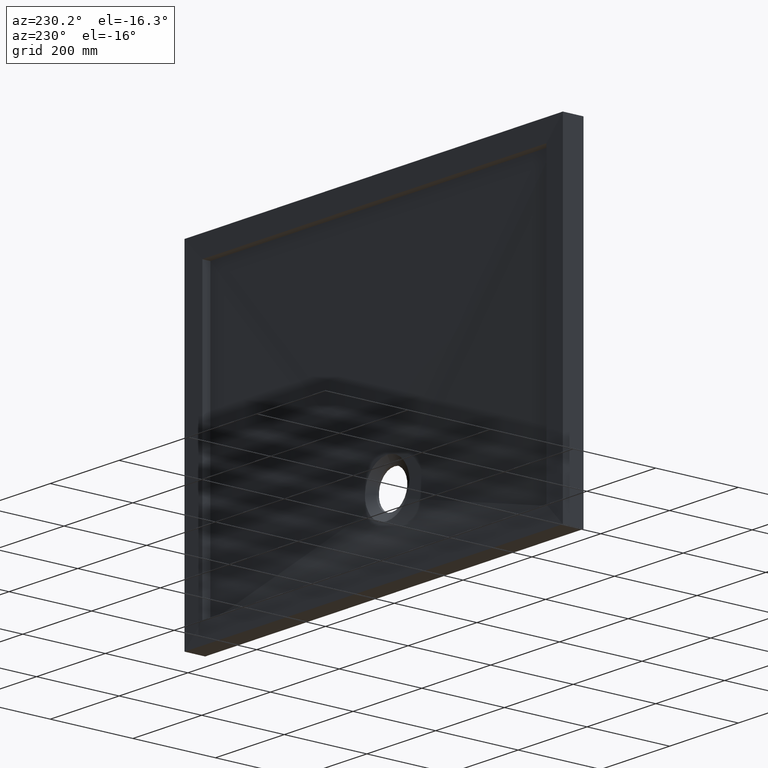
[diagram: clean part render]
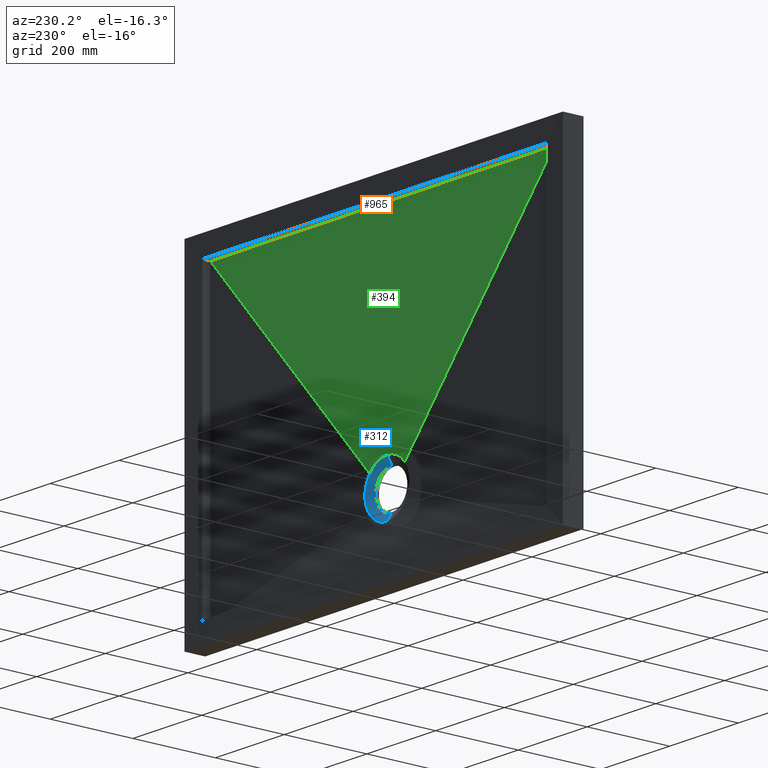
[diagram: same view with three faces highlighted in distinct colors, each labeled with its STEP entity id]
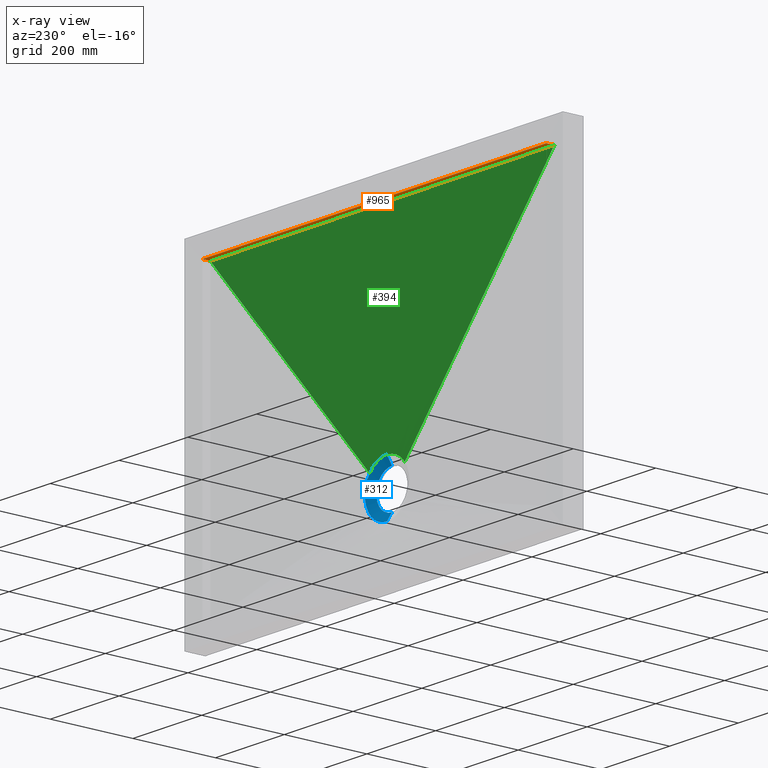
[diagram: x-ray of the same camera — body ghosted, the three highlighted faces saturated]
A machine part, auxiliary view with three faces highlighted in distinct colors.
The next image is the same camera in x-ray (body ghosted, the three faces saturated) — at least one of them is partly hidden behind the body in this view.
Their STEP definitions:

[orange] entity #965 — the highlighted planar face has unit normal (-0, 0, 1).
#38 = CARTESIAN_POINT ( 'NONE',  ( -500.0000000000000000, 28.99999999999991500, 350.0000000000001100 ) ) ;
#52 = LINE ( 'NONE', #815, #925 ) ;
#61 = VECTOR ( 'NONE', #117, 1000.000000000000000 ) ;
#78 = EDGE_CURVE ( 'NONE', #338, #118, #109, .T. ) ;
#109 = B_SPLINE_CURVE_WITH_KNOTS ( 'NONE', 3,
 ( #269, #244, #266, #271 ),
 .UNSPECIFIED., .F., .F.,
 ( 4, 4 ),
 ( 0.0000000000000000000, 1.000000000000000000 ),
 .UNSPECIFIED. ) ;
#117 = DIRECTION ( 'NONE',  ( -0.0000000000000000000, 1.000000000000000000, -0.0000000000000000000 ) ) ;
#118 = VERTEX_POINT ( 'NONE', #38 ) ;
#167 = DIRECTION ( 'NONE',  ( 1.000000000000000000, 0.0000000000000000000, 0.0000000000000000000 ) ) ;
#171 = ORIENTED_EDGE ( 'NONE', *, *, #78, .T. ) ;
#176 = CARTESIAN_POINT ( 'NONE',  ( 500.0000000000000000, 48.25745360236166400, 350.0000000000001100 ) ) ;
#195 = CARTESIAN_POINT ( 'NONE',  ( 500.0000000000002300, 29.00000000000000000, 350.0000000000001100 ) ) ;
#244 = CARTESIAN_POINT ( 'NONE',  ( 166.6666666666668600, 28.99999999999991500, 350.0000000000001100 ) ) ;
#254 = VERTEX_POINT ( 'NONE', #1019 ) ;
#266 = CARTESIAN_POINT ( 'NONE',  ( -166.6666666666666300, 28.99999999999991500, 350.0000000000001100 ) ) ;
#269 = CARTESIAN_POINT ( 'NONE',  ( 500.0000000000002300, 29.00000000000000000, 350.0000000000001100 ) ) ;
#271 = CARTESIAN_POINT ( 'NONE',  ( -500.0000000000000000, 28.99999999999991500, 350.0000000000001100 ) ) ;
#285 = EDGE_CURVE ( 'NONE', #254, #526, #719, .T. ) ;
#287 = PLANE ( 'NONE',  #935 ) ;
#294 = EDGE_LOOP ( 'NONE', ( #1033, #697, #407, #171 ) ) ;
#338 = VERTEX_POINT ( 'NONE', #195 ) ;
#342 = EDGE_CURVE ( 'NONE', #118, #254, #381, .T. ) ;
#381 = LINE ( 'NONE', #1022, #61 ) ;
#407 = ORIENTED_EDGE ( 'NONE', *, *, #620, .F. ) ;
#526 = VERTEX_POINT ( 'NONE', #176 ) ;
#620 = EDGE_CURVE ( 'NONE', #338, #526, #52, .T. ) ;
#644 = DIRECTION ( 'NONE',  ( 1.000000000000000000, 0.0000000000000000000, 0.0000000000000000000 ) ) ;
#697 = ORIENTED_EDGE ( 'NONE', *, *, #285, .T. ) ;
#719 = LINE ( 'NONE', #855, #824 ) ;
#813 = DIRECTION ( 'NONE',  ( -0.0000000000000000000, 1.000000000000000000, -0.0000000000000000000 ) ) ;
#815 = CARTESIAN_POINT ( 'NONE',  ( 500.0000000000000000, -1220.655561573370100, 350.0000000000001100 ) ) ;
#824 = VECTOR ( 'NONE', #644, 1000.000000000000000 ) ;
#855 = CARTESIAN_POINT ( 'NONE',  ( 500.0000000000000000, 48.25745360236189200, 350.0000000000001100 ) ) ;
#925 = VECTOR ( 'NONE', #813, 1000.000000000000000 ) ;
#935 = AXIS2_PLACEMENT_3D ( 'NONE', #970, #986, #167 ) ;
#965 = ADVANCED_FACE ( 'NONE', ( #1005 ), #287, .F. ) ;
#970 = CARTESIAN_POINT ( 'NONE',  ( -500.0000000000000000, -1220.655561573370100, 350.0000000000001100 ) ) ;
#986 = DIRECTION ( 'NONE',  ( -0.0000000000000000000, 0.0000000000000000000, 1.000000000000000000 ) ) ;
#1005 = FACE_OUTER_BOUND ( 'NONE', #294, .T. ) ;
#1019 = CARTESIAN_POINT ( 'NONE',  ( -500.0000000000000000, 48.25745360236166400, 350.0000000000001100 ) ) ;
#1022 = CARTESIAN_POINT ( 'NONE',  ( -500.0000000000000000, -1220.655561573370100, 350.0000000000001100 ) ) ;
#1033 = ORIENTED_EDGE ( 'NONE', *, *, #342, .T. ) ;

[blue] entity #312 — the highlighted conical surface has half-angle 60 deg.
#4 = CARTESIAN_POINT ( 'NONE',  ( 0.0000000000000000000, 6.000000000000000000, -154.9999999999999700 ) ) ;
#27 = AXIS2_PLACEMENT_3D ( 'NONE', #862, #331, #385 ) ;
#40 = LINE ( 'NONE', #941, #913 ) ;
#42 = B_SPLINE_CURVE_WITH_KNOTS ( 'NONE', 3,
 ( #641, #525, #745, #519, #230, #107, #517, #796, #691, #646, #748, #740, #128, #108, #355, #146, #454, #364, #449, #352, #353, #692, #350, #734, #844, #345 ),
 .UNSPECIFIED., .F., .F.,
 ( 4, 2, 2, 2, 2, 2, 2, 2, 2, 2, 2, 2, 4 ),
 ( 0.05846400129617364300, 0.06211118452030461200, 0.06393477613237010000, 0.06575836774443558100, 0.07305273419269750500, 0.08034710064095942900, 0.08399428386509040500, 0.08764146708922138100, 0.09493583353748327700, 0.1022301999857451700, 0.1058773832098761400, 0.1095245664340070700, 0.1168189328822689200 ),
 .UNSPECIFIED. ) ;
#54 = CARTESIAN_POINT ( 'NONE',  ( 64.70723121507114700, 17.37004424533472900, -199.0755451539492600 ) ) ;
#56 = ORIENTED_EDGE ( 'NONE', *, *, #475, .F. ) ;
#68 = CARTESIAN_POINT ( 'NONE',  ( 57.34800329334924400, 17.37164640752299100, -230.1223253466753200 ) ) ;
#107 = CARTESIAN_POINT ( 'NONE',  ( 6.112647968208114500, 17.32620649155840200, -135.6692632758794700 ) ) ;
#108 = CARTESIAN_POINT ( 'NONE',  ( 26.10561876225368700, 17.30353324498871400, -140.9207614138230700 ) ) ;
#111 = AXIS2_PLACEMENT_3D ( 'NONE', #366, #299, #624 ) ;
#115 = CARTESIAN_POINT ( 'NONE',  ( 62.15446047024993700, 17.38718789417705700, -218.1250498923894000 ) ) ;
#128 = CARTESIAN_POINT ( 'NONE',  ( 23.84655168161930000, 17.30745849126840200, -139.9660106085646600 ) ) ;
#144 = CARTESIAN_POINT ( 'NONE',  ( 61.49227516425985100, 17.31452496245966100, -180.1475144752760100 ) ) ;
#146 = CARTESIAN_POINT ( 'NONE',  ( 30.53858112719107600, 17.29497338047776000, -143.0624719587600900 ) ) ;
#154 = CARTESIAN_POINT ( 'NONE',  ( 62.83103500588946100, 17.33057721884764700, -184.7935048089493100 ) ) ;
#168 = DIRECTION ( 'NONE',  ( 1.060575238724906900E-016, 0.4999999999999998900, -0.8660254037844387100 ) ) ;
#172 = CARTESIAN_POINT ( 'NONE',  ( 7.960204194457797300E-015, 17.54700538379253100, -264.9999999999999400 ) ) ;
#197 = FACE_OUTER_BOUND ( 'NONE', #558, .T. ) ;
#198 = VERTEX_POINT ( 'NONE', #865 ) ;
#207 = CARTESIAN_POINT ( 'NONE',  ( 58.78832851517513100, 17.37762017058859200, -227.2279737487014900 ) ) ;
#210 = CARTESIAN_POINT ( 'NONE',  ( 61.17085511816162600, 17.38519753280123200, -221.1984582364054600 ) ) ;
#230 = CARTESIAN_POINT ( 'NONE',  ( 4.886845351621417400, 17.32669083958730000, -135.5637112086310200 ) ) ;
#236 = B_SPLINE_CURVE_WITH_KNOTS ( 'NONE', 3,
 ( #320, #334, #401, #365 ),
 .UNSPECIFIED., .F., .F.,
 ( 4, 4 ),
 ( 0.0000000000000000000, 0.01309867938330680100 ),
 .UNSPECIFIED. ) ;
#238 = ORIENTED_EDGE ( 'NONE', *, *, #636, .T. ) ;
#248 = EDGE_CURVE ( 'NONE', #306, #436, #713, .T. ) ;
#261 = EDGE_CURVE ( 'NONE', #820, #639, #509, .T. ) ;
#284 = CARTESIAN_POINT ( 'NONE',  ( 57.84415519286896800, 17.28100687613712700, -171.1969343167851000 ) ) ;
#299 = DIRECTION ( 'NONE',  ( -0.0000000000000000000, -1.000000000000000000, -0.0000000000000000000 ) ) ;
#306 = VERTEX_POINT ( 'NONE', #884 ) ;
#312 = ADVANCED_FACE ( 'NONE', ( #197 ), #561, .F. ) ;
#320 = CARTESIAN_POINT ( 'NONE',  ( 55.68490230141027600, 17.36412464260612900, -232.9106875675516300 ) ) ;
#331 = DIRECTION ( 'NONE',  ( -0.0000000000000000000, -1.000000000000000000, -0.0000000000000000000 ) ) ;
#334 = CARTESIAN_POINT ( 'NONE',  ( 53.52113663204334400, 17.40928906739684100, -236.7255291940533400 ) ) ;
#345 = CARTESIAN_POINT ( 'NONE',  ( 50.87906680573850300, 17.23826778312639600, -160.4135235172096500 ) ) ;
#348 = CARTESIAN_POINT ( 'NONE',  ( -2.854144852321429700E-015, 17.32753171431356500, -135.3801395464611200 ) ) ;
#350 = CARTESIAN_POINT ( 'NONE',  ( 45.18196119715054900, 17.25712745137958500, -153.9555850668388400 ) ) ;
#352 = CARTESIAN_POINT ( 'NONE',  ( 41.56052739689892700, 17.26778659840147200, -150.6383429323813300 ) ) ;
#353 = CARTESIAN_POINT ( 'NONE',  ( 42.48557603386071700, 17.26515069668197100, -151.4381248451775500 ) ) ;
#355 = CARTESIAN_POINT ( 'NONE',  ( 27.22931686243352400, 17.30145332206185000, -141.4340842872221600 ) ) ;
#363 = CARTESIAN_POINT ( 'NONE',  ( 60.61639150678645600, 17.38366405397212200, -222.7282884315766300 ) ) ;
#364 = CARTESIAN_POINT ( 'NONE',  ( 36.75756856903356600, 17.28064980409957800, -146.8959525620774700 ) ) ;
#365 = CARTESIAN_POINT ( 'NONE',  ( 48.17256978410776500, 17.54700538379253100, -243.6394720453314200 ) ) ;
#366 = CARTESIAN_POINT ( 'NONE',  ( 0.0000000000000000000, 17.54700538379253100, -199.9999999999999400 ) ) ;
#385 = DIRECTION ( 'NONE',  ( 0.0000000000000000000, 0.0000000000000000000, 1.000000000000000000 ) ) ;
#386 = B_SPLINE_CURVE_WITH_KNOTS ( 'NONE', 3,
 ( #851, #446, #725, #284, #735, #1000, #144, #712, #154, #953, #704, #549, #54, #524, #500, #487, #504, #518, #115, #210, #363, #207, #68, #555 ),
 .UNSPECIFIED., .F., .F.,
 ( 4, 2, 2, 2, 2, 2, 2, 2, 2, 2, 2, 4 ),
 ( 0.0000000000000000000, 0.009600561725997446700, 0.01920112345199489300, 0.02400140431499361200, 0.02880168517799233000, 0.03840224690398976600, 0.04320252776698849100, 0.04800280862998721600, 0.05760337035598465200, 0.06240365121898336400, 0.06720393208198208200, 0.07680449380797950400 ),
 .UNSPECIFIED. ) ;
#392 = ORIENTED_EDGE ( 'NONE', *, *, #261, .F. ) ;
#397 = ORIENTED_EDGE ( 'NONE', *, *, #752, .T. ) ;
#401 = CARTESIAN_POINT ( 'NONE',  ( 51.01113406412874700, 17.46625825582806300, -240.2977333082660300 ) ) ;
#419 = AXIS2_PLACEMENT_3D ( 'NONE', #763, #942, #523 ) ;
#436 = VERTEX_POINT ( 'NONE', #4 ) ;
#446 = CARTESIAN_POINT ( 'NONE',  ( 52.88642249345365800, 17.24847984203009700, -162.9647012004550100 ) ) ;
#449 = CARTESIAN_POINT ( 'NONE',  ( 38.72608130938711200, 17.27558937399402000, -148.3245925508164800 ) ) ;
#454 = CARTESIAN_POINT ( 'NONE',  ( 32.66381451161497300, 17.29034432866924600, -144.2648980001060300 ) ) ;
#475 = EDGE_CURVE ( 'NONE', #306, #820, #480, .T. ) ;
#480 = LINE ( 'NONE', #172, #715 ) ;
#487 = CARTESIAN_POINT ( 'NONE',  ( 64.20737254235946500, 17.38523952946565000, -208.7409925677566500 ) ) ;
#500 = CARTESIAN_POINT ( 'NONE',  ( 64.60900109915814900, 17.37885316510284600, -203.9349573249705500 ) ) ;
#504 = CARTESIAN_POINT ( 'NONE',  ( 63.70071009142886000, 17.38747108179409300, -211.9014242944717800 ) ) ;
#509 = CIRCLE ( 'NONE', #111, 65.00000000000000000 ) ;
#517 = CARTESIAN_POINT ( 'NONE',  ( 6.726946289106203700, 17.32592302632366800, -135.7310885635423300 ) ) ;
#518 = CARTESIAN_POINT ( 'NONE',  ( 62.58559460847099100, 17.38765272428474900, -216.5772760871601600 ) ) ;
#519 = CARTESIAN_POINT ( 'NONE',  ( 4.274556986073615200, 17.32689222999365000, -135.5198731262792900 ) ) ;
#522 = EDGE_CURVE ( 'NONE', #198, #639, #236, .T. ) ;
#523 = DIRECTION ( 'NONE',  ( 0.0000000000000000000, 0.0000000000000000000, 1.000000000000000000 ) ) ;
#524 = CARTESIAN_POINT ( 'NONE',  ( 64.68293862567385600, 17.37622754173809300, -202.3202716154729000 ) ) ;
#525 = CARTESIAN_POINT ( 'NONE',  ( 1.218564114226294000, 17.32753171431357200, -135.3801395464611500 ) ) ;
#537 = VERTEX_POINT ( 'NONE', #348 ) ;
#549 = CARTESIAN_POINT ( 'NONE',  ( 64.65758558713665100, 17.36651905247342900, -197.4631169697395000 ) ) ;
#555 = CARTESIAN_POINT ( 'NONE',  ( 55.68490230141027600, 17.36412464260612900, -232.9106875675516300 ) ) ;
#558 = EDGE_LOOP ( 'NONE', ( #56, #800, #238, #397, #563, #988, #392 ) ) ;
#561 = CONICAL_SURFACE ( 'NONE', #419, 65.00000000000000000, 1.047197551196597900 ) ;
#563 = ORIENTED_EDGE ( 'NONE', *, *, #990, .T. ) ;
#564 = DIRECTION ( 'NONE',  ( 0.0000000000000000000, 0.4999999999999998900, 0.8660254037844387100 ) ) ;
#624 = DIRECTION ( 'NONE',  ( 0.0000000000000000000, 0.0000000000000000000, -1.000000000000000000 ) ) ;
#636 = EDGE_CURVE ( 'NONE', #436, #537, #40, .T. ) ;
#639 = VERTEX_POINT ( 'NONE', #956 ) ;
#641 = CARTESIAN_POINT ( 'NONE',  ( -2.854144852321429700E-015, 17.32753171431356500, -135.3801395464611200 ) ) ;
#646 = CARTESIAN_POINT ( 'NONE',  ( 16.92973820653054100, 17.31751320057206200, -137.6077700786845500 ) ) ;
#649 = CARTESIAN_POINT ( 'NONE',  ( 50.87906680573850300, 17.23826778312639600, -160.4135235172096500 ) ) ;
#691 = CARTESIAN_POINT ( 'NONE',  ( 12.18967428493793300, 17.32241716555634900, -136.5026318664594700 ) ) ;
#692 = CARTESIAN_POINT ( 'NONE',  ( 44.29542275296363800, 17.25982422048993200, -153.0957873861547700 ) ) ;
#704 = CARTESIAN_POINT ( 'NONE',  ( 64.32898096860672900, 17.35486550640815700, -192.6547192823615500 ) ) ;
#712 = CARTESIAN_POINT ( 'NONE',  ( 62.42504728470596100, 17.32532794862839900, -183.2383678949565000 ) ) ;
#713 = CIRCLE ( 'NONE', #27, 44.99999999999998600 ) ;
#715 = VECTOR ( 'NONE', #168, 1000.000000000000000 ) ;
#725 = CARTESIAN_POINT ( 'NONE',  ( 54.67740831685502900, 17.25913182203468900, -165.6335233292881500 ) ) ;
#734 = CARTESIAN_POINT ( 'NONE',  ( 47.75899517000356600, 17.24903845873952000, -156.6027816795450700 ) ) ;
#735 = CARTESIAN_POINT ( 'NONE',  ( 59.21985824127451500, 17.29221549807070000, -174.0915547698435800 ) ) ;
#740 = CARTESIAN_POINT ( 'NONE',  ( 22.70761009528516200, 17.30931273414911700, -139.5227338486390900 ) ) ;
#745 = CARTESIAN_POINT ( 'NONE',  ( 2.439508692937750300, 17.32737407060086800, -135.4148515612211800 ) ) ;
#748 = CARTESIAN_POINT ( 'NONE',  ( 19.26303620635154000, 17.31452146444384300, -138.2934777241726700 ) ) ;
#752 = EDGE_CURVE ( 'NONE', #537, #874, #42, .T. ) ;
#763 = CARTESIAN_POINT ( 'NONE',  ( 0.0000000000000000000, 17.54700538379253100, -199.9999999999999400 ) ) ;
#796 = CARTESIAN_POINT ( 'NONE',  ( 9.782908640078812100, 17.32431506559970900, -136.0832002345919100 ) ) ;
#799 = CARTESIAN_POINT ( 'NONE',  ( 0.0000000000000000000, 17.54700538379253100, -264.9999999999999400 ) ) ;
#800 = ORIENTED_EDGE ( 'NONE', *, *, #248, .T. ) ;
#820 = VERTEX_POINT ( 'NONE', #799 ) ;
#844 = CARTESIAN_POINT ( 'NONE',  ( 49.37182701444461200, 17.24363790214202300, -158.4611758277739000 ) ) ;
#851 = CARTESIAN_POINT ( 'NONE',  ( 50.87906680573850300, 17.23826778312639600, -160.4135235172096500 ) ) ;
#862 = CARTESIAN_POINT ( 'NONE',  ( 0.0000000000000000000, 6.000000000000000000, -199.9999999999999400 ) ) ;
#865 = CARTESIAN_POINT ( 'NONE',  ( 55.68490230141027600, 17.36412464260612900, -232.9106875675516300 ) ) ;
#874 = VERTEX_POINT ( 'NONE', #649 ) ;
#884 = CARTESIAN_POINT ( 'NONE',  ( -5.204748896376248500E-015, 6.000000000000000000, -244.9999999999999400 ) ) ;
#913 = VECTOR ( 'NONE', #564, 1000.000000000000000 ) ;
#941 = CARTESIAN_POINT ( 'NONE',  ( 0.0000000000000000000, 17.54700538379253100, -134.9999999999999400 ) ) ;
#942 = DIRECTION ( 'NONE',  ( 0.0000000000000000000, 1.000000000000000000, 0.0000000000000000000 ) ) ;
#953 = CARTESIAN_POINT ( 'NONE',  ( 63.87136309039215100, 17.34568475496981000, -189.4874743866648100 ) ) ;
#956 = CARTESIAN_POINT ( 'NONE',  ( 48.17256978410776500, 17.54700538379253100, -243.6394720453314200 ) ) ;
#988 = ORIENTED_EDGE ( 'NONE', *, *, #522, .T. ) ;
#990 = EDGE_CURVE ( 'NONE', #874, #198, #386, .T. ) ;
#1000 = CARTESIAN_POINT ( 'NONE',  ( 60.96337010501173400, 17.30894978269055400, -178.6075016322709200 ) ) ;

[green] entity #394 — the highlighted face is a freeform B-spline surface patch.
#1 = VECTOR ( 'NONE', #375, 1000.000000000000100 ) ;
#2 = CARTESIAN_POINT ( 'NONE',  ( 17.20878591624602500, 17.00000000000000400, -151.9437713889022600 ) ) ;
#5 = CARTESIAN_POINT ( 'NONE',  ( 145.8333333333345600, 29.00000000000000400, 350.0000000000001100 ) ) ;
#6 = CARTESIAN_POINT ( 'NONE',  ( 15.15893887578451800, 17.00000000000000000, -151.2563727105007600 ) ) ;
#7 = CARTESIAN_POINT ( 'NONE',  ( 10.95210479429227800, 16.99999999999999600, -150.1423423158264800 ) ) ;
#15 = CARTESIAN_POINT ( 'NONE',  ( 104.1666666666679800, 29.00000000000000400, 350.0000000000001100 ) ) ;
#16 = CARTESIAN_POINT ( 'NONE',  ( 83.33333333333467900, 29.00000000000000400, 350.0000000000001100 ) ) ;
#17 = CARTESIAN_POINT ( 'NONE',  ( 21.15875785157163600, 17.00000000000000000, -153.5473317535813700 ) ) ;
#23 = CARTESIAN_POINT ( 'NONE',  ( 8.795224814242915900, 17.00000000000000700, -149.7158153506212600 ) ) ;
#28 = CARTESIAN_POINT ( 'NONE',  ( -41.66666666666527200, 29.00000000000000000, 350.0000000000001100 ) ) ;
#31 = CARTESIAN_POINT ( 'NONE',  ( -4.425493543372240900, 17.00000000000000400, -149.1446147169892500 ) ) ;
#36 = CARTESIAN_POINT ( 'NONE',  ( -2.212786136686855100, 17.00000000000000400, -148.9999999999998300 ) ) ;
#38 = CARTESIAN_POINT ( 'NONE',  ( -500.0000000000000000, 28.99999999999991500, 350.0000000000001100 ) ) ;
#39 = CARTESIAN_POINT ( 'NONE',  ( -83.33333333333199300, 29.00000000000000000, 350.0000000000001100 ) ) ;
#41 = CARTESIAN_POINT ( 'NONE',  ( -8.795224814242958500, 17.00000000000001100, -149.7158153506212000 ) ) ;
#42 = B_SPLINE_CURVE_WITH_KNOTS ( 'NONE', 3,
 ( #641, #525, #745, #519, #230, #107, #517, #796, #691, #646, #748, #740, #128, #108, #355, #146, #454, #364, #449, #352, #353, #692, #350, #734, #844, #345 ),
 .UNSPECIFIED., .F., .F.,
 ( 4, 2, 2, 2, 2, 2, 2, 2, 2, 2, 2, 2, 4 ),
 ( 0.05846400129617364300, 0.06211118452030461200, 0.06393477613237010000, 0.06575836774443558100, 0.07305273419269750500, 0.08034710064095942900, 0.08399428386509040500, 0.08764146708922138100, 0.09493583353748327700, 0.1022301999857451700, 0.1058773832098761400, 0.1095245664340070700, 0.1168189328822689200 ),
 .UNSPECIFIED. ) ;
#57 = CARTESIAN_POINT ( 'NONE',  ( -10.95210479429232500, 16.99999999999999600, -150.1423423158264500 ) ) ;
#63 = CARTESIAN_POINT ( 'NONE',  ( -145.8333333333320100, 29.00000000000000000, 350.0000000000001100 ) ) ;
#66 = CARTESIAN_POINT ( 'NONE',  ( -15.15893887578456800, 17.00000000000000400, -151.2563727105007800 ) ) ;
#71 = CARTESIAN_POINT ( 'NONE',  ( -166.6666666666653500, 29.00000000000000000, 350.0000000000001100 ) ) ;
#76 = CARTESIAN_POINT ( 'NONE',  ( -17.20878591624606100, 17.00000000000000000, -151.9437713889022900 ) ) ;
#78 = EDGE_CURVE ( 'NONE', #338, #118, #109, .T. ) ;
#79 = CARTESIAN_POINT ( 'NONE',  ( -36.78128651579465500, 17.28048776699820300, -146.9543331638377300 ) ) ;
#81 = ORIENTED_EDGE ( 'NONE', *, *, #752, .F. ) ;
#82 = CARTESIAN_POINT ( 'NONE',  ( -208.3333333333320900, 29.00000000000000000, 350.0000000000001100 ) ) ;
#84 = CARTESIAN_POINT ( 'NONE',  ( -21.15875785157167500, 16.99999999999999600, -153.5473317535813500 ) ) ;
#86 = CARTESIAN_POINT ( 'NONE',  ( -229.1666666666654600, 29.00000000000000000, 350.0000000000001100 ) ) ;
#89 = CARTESIAN_POINT ( 'NONE',  ( -333.3333333333324600, 28.99999999999999600, 350.0000000000001100 ) ) ;
#90 = CARTESIAN_POINT ( 'NONE',  ( -31.63133132208605100, 17.00000000000000400, -159.9442574900167000 ) ) ;
#92 = CARTESIAN_POINT ( 'NONE',  ( -354.1666666666658300, 28.99999999999999600, 350.0000000000001100 ) ) ;
#93 = CARTESIAN_POINT ( 'NONE',  ( -50.87906680573855300, 17.23826778312640000, -160.4135235172096000 ) ) ;
#94 = CARTESIAN_POINT ( 'NONE',  ( -33.14832565107271700, 17.00000000000000000, -161.1943951944348600 ) ) ;
#96 = CARTESIAN_POINT ( 'NONE',  ( -395.8333333333326900, 28.99999999999999600, 350.0000000000001100 ) ) ;
#98 = CARTESIAN_POINT ( 'NONE',  ( -20.83333333333185100, 29.00000000000000000, 350.0000000000001100 ) ) ;
#101 = CARTESIAN_POINT ( 'NONE',  ( -35.97221617720922600, 17.00000000000001100, -163.7966006969595600 ) ) ;
#102 = CARTESIAN_POINT ( 'NONE',  ( -416.6666666666661700, 28.99999999999999600, 350.0000000000001100 ) ) ;
#104 = CARTESIAN_POINT ( 'NONE',  ( -37.27917546631009300, 17.00000000000000000, -165.1485868540853500 ) ) ;
#107 = CARTESIAN_POINT ( 'NONE',  ( 6.112647968208114500, 17.32620649155840200, -135.6692632758794700 ) ) ;
#108 = CARTESIAN_POINT ( 'NONE',  ( 26.10561876225368700, 17.30353324498871400, -140.9207614138230700 ) ) ;
#109 = B_SPLINE_CURVE_WITH_KNOTS ( 'NONE', 3,
 ( #269, #244, #266, #271 ),
 .UNSPECIFIED., .F., .F.,
 ( 4, 4 ),
 ( 0.0000000000000000000, 1.000000000000000000 ),
 .UNSPECIFIED. ) ;
#110 = CARTESIAN_POINT ( 'NONE',  ( -458.3333333333330300, 28.99999999999999600, 350.0000000000001100 ) ) ;
#112 = CARTESIAN_POINT ( 'NONE',  ( -39.68428278191560600, 17.00000000000000000, -167.9139341489155300 ) ) ;
#118 = VERTEX_POINT ( 'NONE', #38 ) ;
#119 = CARTESIAN_POINT ( 'NONE',  ( 2.212786136686807600, 17.00000000000000000, -148.9999999999998300 ) ) ;
#122 = CARTESIAN_POINT ( 'NONE',  ( -479.1666666666665200, 28.99999999999999600, 350.0000000000001100 ) ) ;
#123 = EDGE_CURVE ( 'NONE', #338, #874, #929, .T. ) ;
#128 = CARTESIAN_POINT ( 'NONE',  ( 23.84655168161930000, 17.30745849126840200, -139.9660106085646600 ) ) ;
#129 = CARTESIAN_POINT ( 'NONE',  ( -40.78250579882019600, 17.00000000000000400, -169.3272459408258300 ) ) ;
#131 = CARTESIAN_POINT ( 'NONE',  ( 20.83333333333484200, 29.00000000000000000, 350.0000000000001100 ) ) ;
#133 = CARTESIAN_POINT ( 'NONE',  ( -500.0000000000000000, 29.00000000000000000, 350.0000000000001100 ) ) ;
#134 = CARTESIAN_POINT ( 'NONE',  ( -41.78082794647121300, 17.00000000000000000, -170.7534204374701100 ) ) ;
#138 = CARTESIAN_POINT ( 'NONE',  ( -49.36901797809839800, 17.24364791040984100, -158.4575372457433100 ) ) ;
#146 = CARTESIAN_POINT ( 'NONE',  ( 30.53858112719107600, 17.29497338047776000, -143.0624719587600900 ) ) ;
#148 = CARTESIAN_POINT ( 'NONE',  ( 4.425493543372204500, 17.00000000000001100, -149.1446147169892800 ) ) ;
#157 = CARTESIAN_POINT ( 'NONE',  ( 41.66666666666811400, 29.00000000000000400, 350.0000000000001100 ) ) ;
#181 = CARTESIAN_POINT ( 'NONE',  ( 500.0000000000002300, 29.00000000000000000, 350.0000000000001100 ) ) ;
#195 = CARTESIAN_POINT ( 'NONE',  ( 500.0000000000002300, 29.00000000000000000, 350.0000000000001100 ) ) ;
#214 = CARTESIAN_POINT ( 'NONE',  ( 270.8904139732357000, 23.00000000000000000, 89.62328978126498700 ) ) ;
#230 = CARTESIAN_POINT ( 'NONE',  ( 4.886845351621417400, 17.32669083958730000, -135.5637112086310200 ) ) ;
#244 = CARTESIAN_POINT ( 'NONE',  ( 166.6666666666668600, 28.99999999999991500, 350.0000000000001100 ) ) ;
#255 = CARTESIAN_POINT ( 'NONE',  ( -4.873831112326343800, 17.32689090131778900, -135.5191893018485700 ) ) ;
#266 = CARTESIAN_POINT ( 'NONE',  ( -166.6666666666666300, 28.99999999999991500, 350.0000000000001100 ) ) ;
#269 = CARTESIAN_POINT ( 'NONE',  ( 500.0000000000002300, 29.00000000000000000, 350.0000000000001100 ) ) ;
#271 = CARTESIAN_POINT ( 'NONE',  ( -500.0000000000000000, 28.99999999999991500, 350.0000000000001100 ) ) ;
#281 = ORIENTED_EDGE ( 'NONE', *, *, #951, .F. ) ;
#325 = ORIENTED_EDGE ( 'NONE', *, *, #123, .T. ) ;
#338 = VERTEX_POINT ( 'NONE', #195 ) ;
#345 = CARTESIAN_POINT ( 'NONE',  ( 50.87906680573850300, 17.23826778312639600, -160.4135235172096500 ) ) ;
#348 = CARTESIAN_POINT ( 'NONE',  ( -2.854144852321429700E-015, 17.32753171431356500, -135.3801395464611200 ) ) ;
#350 = CARTESIAN_POINT ( 'NONE',  ( 45.18196119715054900, 17.25712745137958500, -153.9555850668388400 ) ) ;
#352 = CARTESIAN_POINT ( 'NONE',  ( 41.56052739689892700, 17.26778659840147200, -150.6383429323813300 ) ) ;
#353 = CARTESIAN_POINT ( 'NONE',  ( 42.48557603386071700, 17.26515069668197100, -151.4381248451775500 ) ) ;
#355 = CARTESIAN_POINT ( 'NONE',  ( 27.22931686243352400, 17.30145332206185000, -141.4340842872221600 ) ) ;
#364 = CARTESIAN_POINT ( 'NONE',  ( 36.75756856903356600, 17.28064980409957800, -146.8959525620774700 ) ) ;
#375 = DIRECTION ( 'NONE',  ( -0.6604934469873173800, -0.01729722771818439900, -0.7506325415275285600 ) ) ;
#391 = CARTESIAN_POINT ( 'NONE',  ( -2.854144852321429700E-015, 17.32753171431356500, -135.3801395464611200 ) ) ;
#394 = ADVANCED_FACE ( 'NONE', ( #686 ), #995, .F. ) ;
#398 = CARTESIAN_POINT ( 'NONE',  ( -2.441683402489752500, 17.32753171431356900, -135.3801395464611200 ) ) ;
#402 = CARTESIAN_POINT ( 'NONE',  ( -9.719132492689595900, 17.32435568203575100, -136.0742605644163100 ) ) ;
#403 = DIRECTION ( 'NONE',  ( 0.6604934469873172700, -0.01729722771818440300, -0.7506325415275287800 ) ) ;
#404 = CARTESIAN_POINT ( 'NONE',  ( -12.13228943096852000, 17.32247250100923000, -136.4902344706099200 ) ) ;
#406 = CARTESIAN_POINT ( 'NONE',  ( -16.92750838579882400, 17.31733545639491100, -137.6519211552279100 ) ) ;
#409 = CARTESIAN_POINT ( 'NONE',  ( -15.13644478405190500, 17.31936948543221500, -137.1894273004594700 ) ) ;
#411 = CARTESIAN_POINT ( 'NONE',  ( -15.73648651872551200, 17.31871203571399300, -137.3382530066817800 ) ) ;
#414 = CARTESIAN_POINT ( 'NONE',  ( -17.51947360844597800, 17.31661508839446700, -137.8169849164378300 ) ) ;
#415 = CARTESIAN_POINT ( 'NONE',  ( -19.28485710759491300, 17.31436062809967100, -138.3365752235264700 ) ) ;
#418 = CARTESIAN_POINT ( 'NONE',  ( -20.44777169193092100, 17.31273280948923700, -138.7154811165933700 ) ) ;
#420 = CARTESIAN_POINT ( 'NONE',  ( -30.51539883089360900, 17.29501955451313200, -143.0508068449350400 ) ) ;
#425 = CARTESIAN_POINT ( 'NONE',  ( -38.76455318347689200, 17.27540111758295200, -148.3969178006972000 ) ) ;
#429 = CARTESIAN_POINT ( 'NONE',  ( -39.73230946895599700, 17.27282312772598200, -149.1441146492467500 ) ) ;
#439 = LINE ( 'NONE', #871, #709 ) ;
#449 = CARTESIAN_POINT ( 'NONE',  ( 38.72608130938711200, 17.27558937399402000, -148.3245925508164800 ) ) ;
#454 = CARTESIAN_POINT ( 'NONE',  ( 32.66381451161497300, 17.29034432866924600, -144.2648980001060300 ) ) ;
#465 = CARTESIAN_POINT ( 'NONE',  ( -35.76439585990323900, 17.28300073254613500, -146.2580576120210200 ) ) ;
#466 = CARTESIAN_POINT ( 'NONE',  ( -47.76168883719413600, 17.24902739947271600, -156.6070921382080600 ) ) ;
#478 = CARTESIAN_POINT ( 'NONE',  ( -44.35971361331832000, 17.25971095955073400, -153.1094252114521900 ) ) ;
#482 = CARTESIAN_POINT ( 'NONE',  ( -32.64907899776273600, 17.29038126060880400, -144.2546028816175900 ) ) ;
#485 = CARTESIAN_POINT ( 'NONE',  ( -42.56504299122723700, 17.26501347768730800, -151.4622300102289500 ) ) ;
#493 = EDGE_LOOP ( 'NONE', ( #717, #281, #761, #325, #81 ) ) ;
#496 = CARTESIAN_POINT ( 'NONE',  ( -26.13845466050341300, 17.30358858058107100, -140.8975628426734700 ) ) ;
#499 = CARTESIAN_POINT ( 'NONE',  ( -23.89517301437883400, 17.30751111505897900, -139.9481557936379700 ) ) ;
#517 = CARTESIAN_POINT ( 'NONE',  ( 6.726946289106203700, 17.32592302632366800, -135.7310885635423300 ) ) ;
#519 = CARTESIAN_POINT ( 'NONE',  ( 4.274556986073615200, 17.32689222999365000, -135.5198731262792900 ) ) ;
#525 = CARTESIAN_POINT ( 'NONE',  ( 1.218564114226294000, 17.32753171431357200, -135.3801395464611500 ) ) ;
#537 = VERTEX_POINT ( 'NONE', #348 ) ;
#586 = EDGE_CURVE ( 'NONE', #707, #537, #1016, .T. ) ;
#641 = CARTESIAN_POINT ( 'NONE',  ( -2.854144852321429700E-015, 17.32753171431356500, -135.3801395464611200 ) ) ;
#646 = CARTESIAN_POINT ( 'NONE',  ( 16.92973820653054100, 17.31751320057206200, -137.6077700786845500 ) ) ;
#649 = CARTESIAN_POINT ( 'NONE',  ( 50.87906680573850300, 17.23826778312639600, -160.4135235172096500 ) ) ;
#667 = CARTESIAN_POINT ( 'NONE',  ( -50.87906680573855300, 17.23826778312640000, -160.4135235172096000 ) ) ;
#686 = FACE_OUTER_BOUND ( 'NONE', #493, .T. ) ;
#691 = CARTESIAN_POINT ( 'NONE',  ( 12.18967428493793300, 17.32241716555634900, -136.5026318664594700 ) ) ;
#692 = CARTESIAN_POINT ( 'NONE',  ( 44.29542275296363800, 17.25982422048993200, -153.0957873861547700 ) ) ;
#707 = VERTEX_POINT ( 'NONE', #667 ) ;
#709 = VECTOR ( 'NONE', #403, 1000.000000000000000 ) ;
#717 = ORIENTED_EDGE ( 'NONE', *, *, #586, .F. ) ;
#734 = CARTESIAN_POINT ( 'NONE',  ( 47.75899517000356600, 17.24903845873952000, -156.6027816795450700 ) ) ;
#740 = CARTESIAN_POINT ( 'NONE',  ( 22.70761009528516200, 17.30931273414911700, -139.5227338486390900 ) ) ;
#745 = CARTESIAN_POINT ( 'NONE',  ( 2.439508692937750300, 17.32737407060086800, -135.4148515612211800 ) ) ;
#748 = CARTESIAN_POINT ( 'NONE',  ( 19.26303620635154000, 17.31452146444384300, -138.2934777241726700 ) ) ;
#752 = EDGE_CURVE ( 'NONE', #537, #874, #42, .T. ) ;
#761 = ORIENTED_EDGE ( 'NONE', *, *, #78, .F. ) ;
#796 = CARTESIAN_POINT ( 'NONE',  ( 9.782908640078812100, 17.32431506559970900, -136.0832002345919100 ) ) ;
#839 = CARTESIAN_POINT ( 'NONE',  ( -104.1666666666653200, 29.00000000000000000, 350.0000000000001100 ) ) ;
#844 = CARTESIAN_POINT ( 'NONE',  ( 49.37182701444461200, 17.24363790214202300, -158.4611758277739000 ) ) ;
#871 = CARTESIAN_POINT ( 'NONE',  ( -270.8904139732355800, 23.00000000000000000, 89.62328978126498700 ) ) ;
#874 = VERTEX_POINT ( 'NONE', #649 ) ;
#888 = CARTESIAN_POINT ( 'NONE',  ( 479.1666666666669100, 28.99999999999999600, 350.0000000000001100 ) ) ;
#895 = CARTESIAN_POINT ( 'NONE',  ( 41.78082794647117700, 17.00000000000000000, -170.7534204374701100 ) ) ;
#929 = LINE ( 'NONE', #214, #1 ) ;
#951 = EDGE_CURVE ( 'NONE', #118, #707, #439, .T. ) ;
#962 = CARTESIAN_POINT ( 'NONE',  ( 458.3333333333336000, 28.99999999999999300, 350.0000000000001100 ) ) ;
#979 = CARTESIAN_POINT ( 'NONE',  ( 166.6666666666678500, 29.00000000000000400, 350.0000000000001100 ) ) ;
#982 = CARTESIAN_POINT ( 'NONE',  ( -23.05882569981316300, 17.00000000000000400, -154.4633646372925600 ) ) ;
#987 = CARTESIAN_POINT ( 'NONE',  ( 40.78250579882017500, 17.00000000000000000, -169.3272459408257800 ) ) ;
#989 = CARTESIAN_POINT ( 'NONE',  ( -28.39588175895282500, 17.00000000000000400, -157.5891814702282300 ) ) ;
#993 = CARTESIAN_POINT ( 'NONE',  ( 39.68428278191557700, 16.99999999999999600, -167.9139341489155600 ) ) ;
#995 = B_SPLINE_SURFACE_WITH_KNOTS ( 'NONE', 3, 1, ( 
 ( #181, #895 ),
 ( #888, #987 ),
 ( #962, #993 ),
 ( #996, #1001 ),
 ( #1011, #1010 ),
 ( #1015, #1012 ),
 ( #1017, #1021 ),
 ( #1027, #1025 ),
 ( #1029, #1035 ),
 ( #997, #1042 ),
 ( #1038, #17 ),
 ( #979, #2 ),
 ( #5, #6 ),
 ( #15, #7 ),
 ( #16, #23 ),
 ( #157, #148 ),
 ( #131, #119 ),
 ( #98, #36 ),
 ( #28, #31 ),
 ( #39, #41 ),
 ( #839, #57 ),
 ( #63, #66 ),
 ( #71, #76 ),
 ( #82, #84 ),
 ( #86, #982 ),
 ( #1031, #1008 ),
 ( #1003, #989 ),
 ( #89, #90 ),
 ( #92, #94 ),
 ( #96, #101 ),
 ( #102, #104 ),
 ( #110, #112 ),
 ( #122, #129 ),
 ( #133, #134 ) ),
 .UNSPECIFIED., .F., .F., .F.,
 ( 4, 2, 2, 2, 2, 2, 2, 2, 2, 2, 2, 2, 2, 2, 2, 2, 4 ),
 ( 2, 2 ),
 ( 0.0000000000000000000, 0.06250000000000008300, 0.1250000000000001700, 0.1875000000000002500, 0.2500000000000002200, 0.3125000000000002200, 0.3750000000000002200, 0.4375000000000001700, 0.5000000000000000000, 0.5625000000000002200, 0.6250000000000001100, 0.6875000000000001100, 0.7500000000000001100, 0.8125000000000001100, 0.8750000000000000000, 0.9375000000000000000, 1.000000000000000000 ),
 ( 0.0000000000000000000, 1.000000000000000000 ),
 .UNSPECIFIED. ) ;
#996 = CARTESIAN_POINT ( 'NONE',  ( 416.6666666666670800, 28.99999999999999300, 350.0000000000001100 ) ) ;
#997 = CARTESIAN_POINT ( 'NONE',  ( 229.1666666666677400, 29.00000000000000400, 350.0000000000001100 ) ) ;
#1001 = CARTESIAN_POINT ( 'NONE',  ( 37.27917546631005800, 16.99999999999999300, -165.1485868540853800 ) ) ;
#1003 = CARTESIAN_POINT ( 'NONE',  ( -291.6666666666656600, 28.99999999999999600, 350.0000000000001100 ) ) ;
#1008 = CARTESIAN_POINT ( 'NONE',  ( -26.67739067076181700, 17.00000000000000000, -156.4843541951852300 ) ) ;
#1010 = CARTESIAN_POINT ( 'NONE',  ( 35.97221617720918400, 17.00000000000000700, -163.7966006969595900 ) ) ;
#1011 = CARTESIAN_POINT ( 'NONE',  ( 395.8333333333338800, 28.99999999999999600, 350.0000000000001700 ) ) ;
#1012 = CARTESIAN_POINT ( 'NONE',  ( 33.14832565107266800, 17.00000000000000700, -161.1943951944348900 ) ) ;
#1015 = CARTESIAN_POINT ( 'NONE',  ( 354.1666666666673700, 28.99999999999999600, 350.0000000000001700 ) ) ;
#1016 = B_SPLINE_CURVE_WITH_KNOTS ( 'NONE', 3,
 ( #93, #138, #466, #478, #485, #429, #425, #79, #465, #482, #420, #496, #499, #418, #415, #414, #406, #411, #409, #404, #402, #255, #398, #391 ),
 .UNSPECIFIED., .F., .F.,
 ( 4, 2, 2, 2, 2, 2, 2, 2, 2, 2, 2, 4 ),
 ( 0.0000000000000000000, 0.007308000162021669800, 0.01461600032404334000, 0.01827000040505420000, 0.02192400048606506200, 0.02923200064808680100, 0.03654000081010855300, 0.04019400089111941500, 0.04202100093162482900, 0.04384800097213024900, 0.05115600113415194600, 0.05846400129617364300 ),
 .UNSPECIFIED. ) ;
#1017 = CARTESIAN_POINT ( 'NONE',  ( 333.3333333333340500, 28.99999999999999600, 350.0000000000001700 ) ) ;
#1021 = CARTESIAN_POINT ( 'NONE',  ( 31.63133132208603000, 17.00000000000000400, -159.9442574900167200 ) ) ;
#1025 = CARTESIAN_POINT ( 'NONE',  ( 28.39588175895279000, 17.00000000000000000, -157.5891814702282000 ) ) ;
#1027 = CARTESIAN_POINT ( 'NONE',  ( 291.6666666666675400, 28.99999999999999600, 350.0000000000001700 ) ) ;
#1029 = CARTESIAN_POINT ( 'NONE',  ( 270.8333333333342800, 28.99999999999999600, 350.0000000000001100 ) ) ;
#1031 = CARTESIAN_POINT ( 'NONE',  ( -270.8333333333322300, 28.99999999999999600, 350.0000000000001100 ) ) ;
#1035 = CARTESIAN_POINT ( 'NONE',  ( 26.67739067076177100, 17.00000000000000000, -156.4843541951852300 ) ) ;
#1038 = CARTESIAN_POINT ( 'NONE',  ( 208.3333333333344500, 29.00000000000000400, 350.0000000000001100 ) ) ;
#1042 = CARTESIAN_POINT ( 'NONE',  ( 23.05882569981312700, 17.00000000000000400, -154.4633646372925600 ) ) ;